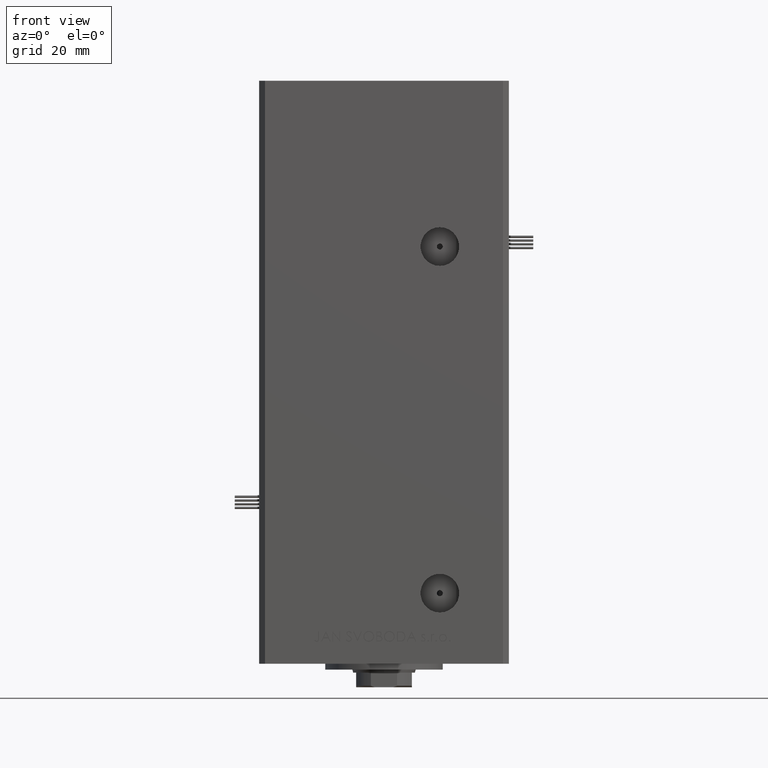
[diagram: clean part render]
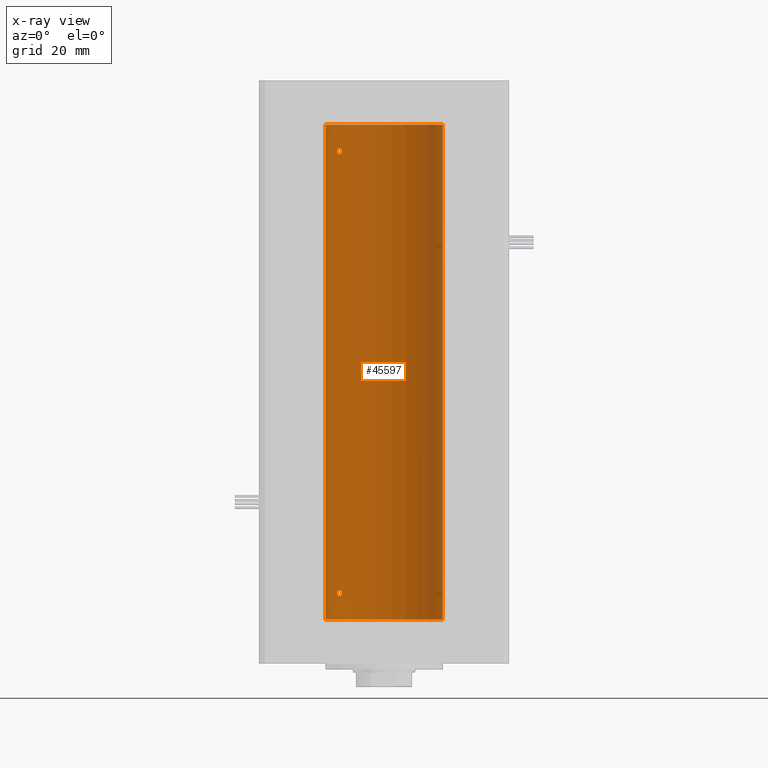
[diagram: x-ray — body ghosted, one internal face saturated and labeled with its STEP entity id]
A machine part, front view, then the same camera in x-ray: the body is ghosted and one INTERNAL B-rep face — a face not visible from any outside direction — is saturated and labeled: STEP entity #45597.
In plain terms, the highlighted cylindrical surface (partial cylindrical patch) has radius 20 mm, axis along (-0, -0, -1).
Its self-contained STEP definition (entity closure, byte-faithful):
#41 = CARTESIAN_POINT ( 'NONE',  ( 20.00000000000000000, 2.449293598294706513E-15, 0.000000000000000000 ) ) ;
#127 = LINE ( 'NONE', #4385, #4727 ) ;
#945 = CARTESIAN_POINT ( 'NONE',  ( -14.69171503997127992, 13.57092520311231176, 9.830547039779304441 ) ) ;
#1901 = CARTESIAN_POINT ( 'NONE',  ( -15.97258576326347779, 12.03672672663915044, 159.8051374092137564 ) ) ;
#2212 = CARTESIAN_POINT ( 'NONE',  ( -14.78531327857344202, 13.46907986586307970, 8.109099006911455021 ) ) ;
#2534 = ORIENTED_EDGE ( 'NONE', *, *, #40202, .T. ) ;
#2732 = CARTESIAN_POINT ( 'NONE',  ( -14.43642497935765512, 13.84184969151371902, 158.9420533359229353 ) ) ;
#2750 = CARTESIAN_POINT ( 'NONE',  ( -15.08054978948645264, 13.13774395934155059, 8.002776544152997218 ) ) ;
#4385 = CARTESIAN_POINT ( 'NONE',  ( -20.00000000000000000, 0.000000000000000000, 168.5000000000000000 ) ) ;
#4727 = VECTOR ( 'NONE', #48349, 1000.000000000000000 ) ;
#4937 = CARTESIAN_POINT ( 'NONE',  ( -14.51882058315761270, 13.75524947942076892, 9.658734659218604079 ) ) ;
#5105 = CARTESIAN_POINT ( 'NONE',  ( -15.28000793038419403, 12.90520882930644042, 160.5021502285312351 ) ) ;
#5690 = FACE_OUTER_BOUND ( 'NONE', #38633, .T. ) ;
#5831 = EDGE_CURVE ( 'NONE', #7437, #5920, #38997, .T. ) ;
#5920 = VERTEX_POINT ( 'NONE', #48536 ) ;
#6498 = AXIS2_PLACEMENT_3D ( 'NONE', #51238, #34200, #35246 ) ;
#7173 = ORIENTED_EDGE ( 'NONE', *, *, #15385, .F. ) ;
#7275 = CARTESIAN_POINT ( 'NONE',  ( -14.98166541227930360, 13.25033217142394726, 8.024769614914273319 ) ) ;
#7437 = VERTEX_POINT ( 'NONE', #30792 ) ;
#7827 = ORIENTED_EDGE ( 'NONE', *, *, #16803, .F. ) ;
#8337 = CARTESIAN_POINT ( 'NONE',  ( -14.44276720520014123, 13.83508275448404135, 160.0540486626502741 ) ) ;
#8600 = CARTESIAN_POINT ( 'NONE',  ( -14.51882058315760027, 13.75524947942078136, 160.1587346592185668 ) ) ;
#8895 = VERTEX_POINT ( 'NONE', #52554 ) ;
#9197 = CARTESIAN_POINT ( 'NONE',  ( -15.28000793038420468, 12.90520882930643687, 10.00215022853123159 ) ) ;
#9840 = CARTESIAN_POINT ( 'NONE',  ( -16.00000000000000711, 11.99999999999999112, 9.000000000000001776 ) ) ;
#10017 = DIRECTION ( 'NONE',  ( -0.000000000000000000, 0.000000000000000000, 1.000000000000000000 ) ) ;
#10171 = VERTEX_POINT ( 'NONE', #9840 ) ;
#10745 = CARTESIAN_POINT ( 'NONE',  ( -16.00000000000000711, 11.99999999999999112, 9.000000000000001776 ) ) ;
#10815 = CARTESIAN_POINT ( 'NONE',  ( 0.000000000000000000, 0.000000000000000000, 168.5000000000000000 ) ) ;
#12119 = ORIENTED_EDGE ( 'NONE', *, *, #30194, .F. ) ;
#12427 = CARTESIAN_POINT ( 'NONE',  ( -16.00000000000001066, 11.99999999999999467, 9.154240719993492092 ) ) ;
#12455 = B_SPLINE_CURVE_WITH_KNOTS ( 'NONE', 3,
 ( #10745, #43518, #26989, #26725, #43785, #42984, #27790, #2750, #7275, #2212, #34980, #23530, #51232, #15544, #18489, #14486 ),
 .UNSPECIFIED., .F., .F.,
 ( 4, 2, 2, 2, 2, 2, 2, 4 ),
 ( 1.734723475976807094E-18, 0.0004556152471946627231, 0.0009112304943893237115, 0.001822460988778648290, 0.002278076235973310742, 0.002733691483167973411, 0.003189306730362636080, 0.003644921977557298749 ),
 .UNSPECIFIED. ) ;
#12912 = CARTESIAN_POINT ( 'NONE',  ( -20.00000000000000000, 0.000000000000000000, 168.5000000000000000 ) ) ;
#13209 = CARTESIAN_POINT ( 'NONE',  ( -14.78630942130980408, 13.46798002156742768, 9.891415279583981146 ) ) ;
#14486 = CARTESIAN_POINT ( 'NONE',  ( -14.28285685708539177, 14.00000000000031442, 8.999999999999852562 ) ) ;
#14581 = VERTEX_POINT ( 'NONE', #12912 ) ;
#15368 = VERTEX_POINT ( 'NONE', #32935 ) ;
#15385 = EDGE_CURVE ( 'NONE', #15368, #10171, #24300, .T. ) ;
#15544 = CARTESIAN_POINT ( 'NONE',  ( -14.31871019372463572, 13.96358505023714969, 8.697478539577891965 ) ) ;
#16355 = AXIS2_PLACEMENT_3D ( 'NONE', #10815, #10017, #43320 ) ;
#16435 = CARTESIAN_POINT ( 'NONE',  ( -15.87665094074984928, 12.16298652314401707, 9.566050066014016195 ) ) ;
#16803 = EDGE_CURVE ( 'NONE', #34668, #26184, #38133, .T. ) ;
#16952 = CARTESIAN_POINT ( 'NONE',  ( -14.28285685708574348, 14.00000000000002132, 9.152512609665839349 ) ) ;
#17124 = CARTESIAN_POINT ( 'NONE',  ( -14.28285685708538111, 14.00000000000032685, 159.4999999999998579 ) ) ;
#17212 = CARTESIAN_POINT ( 'NONE',  ( -14.56006338825496016, 13.71162570780883705, 9.705357955363311362 ) ) ;
#17465 = CARTESIAN_POINT ( 'NONE',  ( -15.56338254739986127, 12.56194079578773959, 9.906815049669285500 ) ) ;
#17969 = CYLINDRICAL_SURFACE ( 'NONE', #6498, 20.00000000000000000 ) ;
#18489 = CARTESIAN_POINT ( 'NONE',  ( -14.28285685708577191, 13.99999999999997868, 8.847421050659347586 ) ) ;
#21462 = CARTESIAN_POINT ( 'NONE',  ( -14.40763032799402055, 13.87162499441318531, 9.495217475255241624 ) ) ;
#22019 = ORIENTED_EDGE ( 'NONE', *, *, #41296, .F. ) ;
#22217 = FACE_BOUND ( 'NONE', #28539, .T. ) ;
#22981 = CARTESIAN_POINT ( 'NONE',  ( -14.69070843596622744, 13.57200975233015683, 158.6702647380768099 ) ) ;
#23530 = CARTESIAN_POINT ( 'NONE',  ( -14.51590294503184886, 13.75881262167378161, 8.336781207422362172 ) ) ;
#23765 = CARTESIAN_POINT ( 'NONE',  ( -15.97265980134107366, 12.03662641108512332, 159.1953373148639059 ) ) ;
#24300 = B_SPLINE_CURVE_WITH_KNOTS ( 'NONE', 3,
 ( #37454, #16952, #49441, #21462, #41450, #4937, #17212, #945, #13209, #24412, #29463, #9197, #37708, #17465, #33711, #44662, #16435, #48919, #12427, #44923 ),
 .UNSPECIFIED., .F., .F.,
 ( 4, 2, 2, 2, 2, 2, 2, 2, 2, 4 ),
 ( 0.003644921977557298749, 0.004100339128177154374, 0.004328047703487082620, 0.004555756278797009999, 0.005011173429416865624, 0.005466590580036722116, 0.005922007730656577741, 0.006377424881276433366, 0.006832842031896288991, 0.007288259182516144616 ),
 .UNSPECIFIED. ) ;
#24412 = CARTESIAN_POINT ( 'NONE',  ( -14.98188199575991675, 13.25008090651447112, 9.975236402857758478 ) ) ;
#24582 = CARTESIAN_POINT ( 'NONE',  ( -14.28285685708573105, 14.00000000000002487, 159.6525126096658767 ) ) ;
#25353 = CARTESIAN_POINT ( 'NONE',  ( -15.08229700616151625, 13.13572892147764470, 160.4974307527147630 ) ) ;
#25629 = CARTESIAN_POINT ( 'NONE',  ( -15.99999999999999645, 12.00000000000000711, 159.5000000000000000 ) ) ;
#26184 = VERTEX_POINT ( 'NONE', #41654 ) ;
#26364 = ORIENTED_EDGE ( 'NONE', *, *, #27884, .T. ) ;
#26725 = CARTESIAN_POINT ( 'NONE',  ( -15.87710824431567325, 12.16238752415380553, 8.434921807322277587 ) ) ;
#26989 = CARTESIAN_POINT ( 'NONE',  ( -15.97265980134108787, 12.03662641108510556, 8.695337314863897049 ) ) ;
#27147 = B_SPLINE_CURVE_WITH_KNOTS ( 'NONE', 3,
 ( #17124, #24582, #40574, #48827, #8337, #8600, #49607, #45621, #48572, #40842, #25353, #5105, #49086, #33099, #37624, #44574, #33619, #1901, #46667, #25629 ),
 .UNSPECIFIED., .F., .F.,
 ( 4, 2, 2, 2, 2, 2, 2, 2, 2, 4 ),
 ( 0.003644921977557289642, 0.004100339128177102332, 0.004328047703487008027, 0.004555756278796913722, 0.005011173429416777153, 0.005466590580036640584, 0.005922007730656504015, 0.006377424881276367447, 0.006832842031896230010, 0.007288259182516093442 ),
 .UNSPECIFIED. ) ;
#27517 = CARTESIAN_POINT ( 'NONE',  ( -14.98166541227928583, 13.25033217142395792, 158.5247696149142485 ) ) ;
#27790 = CARTESIAN_POINT ( 'NONE',  ( -15.37869471769013430, 12.79018928545118072, 7.995165913711802297 ) ) ;
#27884 = EDGE_CURVE ( 'NONE', #8895, #14581, #39309, .T. ) ;
#28539 = EDGE_LOOP ( 'NONE', ( #45409, #7173 ) ) ;
#29463 = CARTESIAN_POINT ( 'NONE',  ( -15.08229700616152513, 13.13572892147764648, 9.997430752714780766 ) ) ;
#30194 = EDGE_CURVE ( 'NONE', #5920, #7437, #27147, .T. ) ;
#30715 = CARTESIAN_POINT ( 'NONE',  ( -14.31871019372461618, 13.96358505023716567, 159.1974785395779293 ) ) ;
#30792 = CARTESIAN_POINT ( 'NONE',  ( -15.99999999999999645, 12.00000000000000711, 159.5000000000000000 ) ) ;
#30978 = CARTESIAN_POINT ( 'NONE',  ( -15.08054978948642955, 13.13774395934156658, 158.5027765441529937 ) ) ;
#31509 = CARTESIAN_POINT ( 'NONE',  ( -14.28285685708538111, 14.00000000000032685, 159.4999999999998579 ) ) ;
#32935 = CARTESIAN_POINT ( 'NONE',  ( -14.28285685708539177, 14.00000000000031442, 8.999999999999852562 ) ) ;
#33099 = CARTESIAN_POINT ( 'NONE',  ( -15.56338254739985949, 12.56194079578774847, 160.4068150496692908 ) ) ;
#33619 = CARTESIAN_POINT ( 'NONE',  ( -15.87665094074984573, 12.16298652314402240, 160.0660500660139860 ) ) ;
#33711 = CARTESIAN_POINT ( 'NONE',  ( -15.65267653428114158, 12.45028749062555207, 9.845491151963431165 ) ) ;
#34200 = DIRECTION ( 'NONE',  ( -0.000000000000000000, -0.000000000000000000, -1.000000000000000000 ) ) ;
#34668 = VERTEX_POINT ( 'NONE', #41 ) ;
#34962 = CARTESIAN_POINT ( 'NONE',  ( -15.99999999999999645, 12.00000000000000711, 159.5000000000000000 ) ) ;
#34980 = CARTESIAN_POINT ( 'NONE',  ( -14.69070843596624165, 13.57200975233013374, 8.170264738076779665 ) ) ;
#35246 = DIRECTION ( 'NONE',  ( -1.000000000000000000, 0.000000000000000000, 0.000000000000000000 ) ) ;
#35481 = CARTESIAN_POINT ( 'NONE',  ( 0.000000000000000000, 0.000000000000000000, 0.000000000000000000 ) ) ;
#35750 = CARTESIAN_POINT ( 'NONE',  ( -15.99999999999999645, 12.00000000000001243, 159.3456921886414648 ) ) ;
#36839 = CARTESIAN_POINT ( 'NONE',  ( 20.00000000000000000, 2.449293598294706513E-15, 168.5000000000000000 ) ) ;
#37177 = VECTOR ( 'NONE', #49348, 1000.000000000000000 ) ;
#37454 = CARTESIAN_POINT ( 'NONE',  ( -14.28285685708539177, 14.00000000000031442, 8.999999999999852562 ) ) ;
#37624 = CARTESIAN_POINT ( 'NONE',  ( -15.65267653428112382, 12.45028749062557161, 160.3454911519634720 ) ) ;
#37708 = CARTESIAN_POINT ( 'NONE',  ( -15.37869370082499110, 12.78737709343837459, 9.984378433483312776 ) ) ;
#38133 = CIRCLE ( 'NONE', #51753, 20.00000000000000000 ) ;
#38633 = EDGE_LOOP ( 'NONE', ( #22019, #26364, #2534, #7827 ) ) ;
#38997 = B_SPLINE_CURVE_WITH_KNOTS ( 'NONE', 3,
 ( #34962, #35750, #23765, #39230, #52013, #47485, #40018, #30978, #27517, #47225, #22981, #50942, #2732, #30715, #51216, #31509 ),
 .UNSPECIFIED., .F., .F.,
 ( 4, 2, 2, 2, 2, 2, 2, 4 ),
 ( 0.000000000000000000, 0.0004556152471946793114, 0.0009112304943893586228, 0.001822460988778669107, 0.002278076235973324620, 0.002733691483167979483, 0.003189306730362634346, 0.003644921977557289642 ),
 .UNSPECIFIED. ) ;
#39161 = ORIENTED_EDGE ( 'NONE', *, *, #5831, .F. ) ;
#39230 = CARTESIAN_POINT ( 'NONE',  ( -15.87710824431565904, 12.16238752415382507, 158.9349218073222403 ) ) ;
#39309 = CIRCLE ( 'NONE', #16355, 20.00000000000000000 ) ;
#40018 = CARTESIAN_POINT ( 'NONE',  ( -15.37869471769012009, 12.79018928545119849, 158.4951659137117588 ) ) ;
#40202 = EDGE_CURVE ( 'NONE', #14581, #26184, #127, .T. ) ;
#40574 = CARTESIAN_POINT ( 'NONE',  ( -14.31936354392034971, 13.96291496472316140, 159.8044284570273703 ) ) ;
#40802 = EDGE_LOOP ( 'NONE', ( #39161, #12119 ) ) ;
#40842 = CARTESIAN_POINT ( 'NONE',  ( -14.98188199575990431, 13.25008090651448001, 160.4752364028577176 ) ) ;
#41296 = EDGE_CURVE ( 'NONE', #8895, #34668, #48569, .T. ) ;
#41450 = CARTESIAN_POINT ( 'NONE',  ( -14.44276720520015367, 13.83508275448402713, 9.554048662650275858 ) ) ;
#41654 = CARTESIAN_POINT ( 'NONE',  ( -20.00000000000000000, 0.000000000000000000, 0.000000000000000000 ) ) ;
#42984 = CARTESIAN_POINT ( 'NONE',  ( -15.57359523075763796, 12.55100654799542070, 8.068614275410753933 ) ) ;
#43320 = DIRECTION ( 'NONE',  ( 1.000000000000000000, 0.000000000000000000, 0.000000000000000000 ) ) ;
#43518 = CARTESIAN_POINT ( 'NONE',  ( -16.00000000000000711, 11.99999999999999112, 8.845692188641407938 ) ) ;
#43767 = DIRECTION ( 'NONE',  ( -0.000000000000000000, 0.000000000000000000, 1.000000000000000000 ) ) ;
#43785 = CARTESIAN_POINT ( 'NONE',  ( -15.80909732170550797, 12.25106527276994228, 8.324451780901403808 ) ) ;
#44282 = DIRECTION ( 'NONE',  ( 1.000000000000000000, 0.000000000000000000, 0.000000000000000000 ) ) ;
#44574 = CARTESIAN_POINT ( 'NONE',  ( -15.80861854366319363, 12.25167421322532491, 160.1760529919016847 ) ) ;
#44662 = CARTESIAN_POINT ( 'NONE',  ( -15.80861854366321495, 12.25167421322530714, 9.676052991901700651 ) ) ;
#44923 = CARTESIAN_POINT ( 'NONE',  ( -16.00000000000000711, 11.99999999999999112, 9.000000000000001776 ) ) ;
#45409 = ORIENTED_EDGE ( 'NONE', *, *, #48690, .F. ) ;
#45597 = ADVANCED_FACE ( 'NONE', ( #5690, #22217, #50704 ), #17969, .F. ) ;
#45621 = CARTESIAN_POINT ( 'NONE',  ( -14.69171503997127459, 13.57092520311232065, 160.3305470397793044 ) ) ;
#46667 = CARTESIAN_POINT ( 'NONE',  ( -15.99999999999999645, 12.00000000000001421, 159.6542407199935667 ) ) ;
#47225 = CARTESIAN_POINT ( 'NONE',  ( -14.78531327857342781, 13.46907986586309747, 158.6090990069114923 ) ) ;
#47485 = CARTESIAN_POINT ( 'NONE',  ( -15.57359523075762198, 12.55100654799543314, 158.5686142754107379 ) ) ;
#48349 = DIRECTION ( 'NONE',  ( -0.000000000000000000, -0.000000000000000000, -1.000000000000000000 ) ) ;
#48536 = CARTESIAN_POINT ( 'NONE',  ( -14.28285685708538111, 14.00000000000032685, 159.4999999999998579 ) ) ;
#48569 = LINE ( 'NONE', #36839, #37177 ) ;
#48572 = CARTESIAN_POINT ( 'NONE',  ( -14.78630942130979697, 13.46798002156743301, 160.3914152795839811 ) ) ;
#48690 = EDGE_CURVE ( 'NONE', #10171, #15368, #12455, .T. ) ;
#48827 = CARTESIAN_POINT ( 'NONE',  ( -14.40763032799401877, 13.87162499441318886, 159.9952174752552878 ) ) ;
#48919 = CARTESIAN_POINT ( 'NONE',  ( -15.97258576326347779, 12.03672672663913268, 9.305137409213726229 ) ) ;
#49086 = CARTESIAN_POINT ( 'NONE',  ( -15.37869370082499287, 12.78737709343838880, 160.4843784334833003 ) ) ;
#49348 = DIRECTION ( 'NONE',  ( -0.000000000000000000, -0.000000000000000000, -1.000000000000000000 ) ) ;
#49441 = CARTESIAN_POINT ( 'NONE',  ( -14.31936354392036215, 13.96291496472314897, 9.304428457027322352 ) ) ;
#49607 = CARTESIAN_POINT ( 'NONE',  ( -14.56006338825494950, 13.71162570780885304, 160.2053579553632972 ) ) ;
#50704 = FACE_BOUND ( 'NONE', #40802, .T. ) ;
#50942 = CARTESIAN_POINT ( 'NONE',  ( -14.51590294503183109, 13.75881262167379404, 158.8367812074224332 ) ) ;
#51216 = CARTESIAN_POINT ( 'NONE',  ( -14.28285685708575770, 14.00000000000000355, 159.3474210506593920 ) ) ;
#51232 = CARTESIAN_POINT ( 'NONE',  ( -14.43642497935767111, 13.84184969151370304, 8.442053335922924617 ) ) ;
#51238 = CARTESIAN_POINT ( 'NONE',  ( 0.000000000000000000, 0.000000000000000000, 168.5000000000000000 ) ) ;
#51753 = AXIS2_PLACEMENT_3D ( 'NONE', #35481, #43767, #44282 ) ;
#52013 = CARTESIAN_POINT ( 'NONE',  ( -15.80909732170550441, 12.25106527276996360, 158.8244517809014269 ) ) ;
#52554 = CARTESIAN_POINT ( 'NONE',  ( 20.00000000000000000, 2.449293598294706513E-15, 168.5000000000000000 ) ) ;